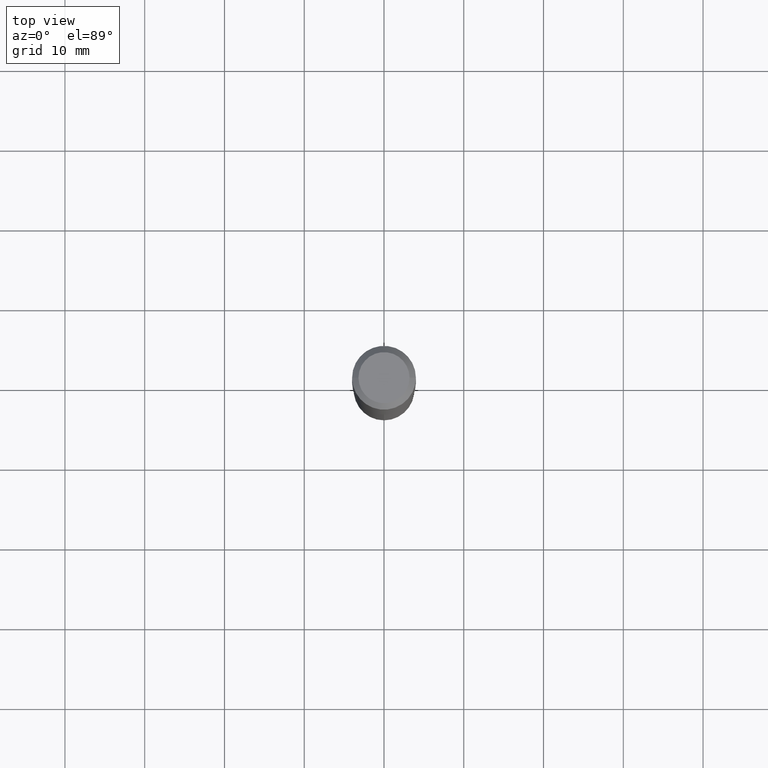
[diagram: clean part render]
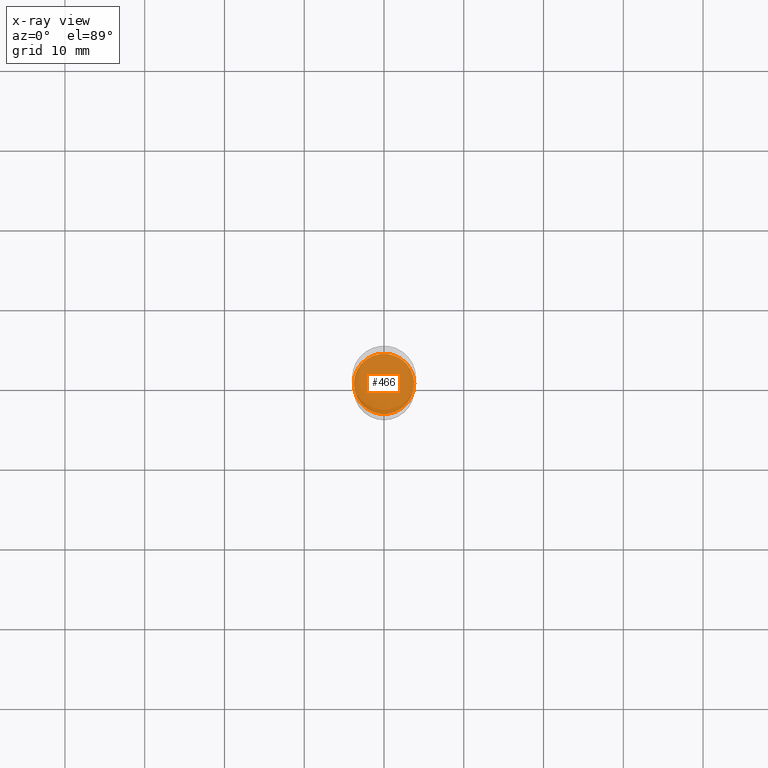
[diagram: x-ray — body ghosted, one internal face saturated and labeled with its STEP entity id]
A machine part, top view, then the same camera in x-ray: the body is ghosted and one INTERNAL B-rep face — a face not visible from any outside direction — is saturated and labeled: STEP entity #466.
In plain terms, the highlighted planar face has unit normal (-0, 0, 1).
Its self-contained STEP definition (entity closure, byte-faithful):
#5 = PLANE ( 'NONE',  #25 ) ;
#23 = DIRECTION ( 'NONE',  ( 1.000000000000000000, -6.982962677686265133E-15, 0.000000000000000000 ) ) ;
#25 = AXIS2_PLACEMENT_3D ( 'NONE', #157, #319, #281 ) ;
#60 = EDGE_CURVE ( 'NONE', #223, #465, #460, .T. ) ;
#78 = ORIENTED_EDGE ( 'NONE', *, *, #231, .F. ) ;
#80 = CARTESIAN_POINT ( 'NONE',  ( 4.390350147744175670E-29, -6.268256447625099205E-15, -1.795300000000000118 ) ) ;
#134 = DIRECTION ( 'NONE',  ( 1.000000000000000000, -6.982962677686265133E-15, 0.000000000000000000 ) ) ;
#147 = ORIENTED_EDGE ( 'NONE', *, *, #60, .F. ) ;
#157 = CARTESIAN_POINT ( 'NONE',  ( 4.390350147744175670E-29, -6.268256447625099205E-15, -1.795300000000000118 ) ) ;
#177 = CARTESIAN_POINT ( 'NONE',  ( 4.390350147744175670E-29, -6.268256447625099205E-15, -1.795300000000000118 ) ) ;
#197 = CARTESIAN_POINT ( 'NONE',  ( 0.1491000000000000103, -7.309416182868121799E-15, -1.795300000000000118 ) ) ;
#223 = VERTEX_POINT ( 'NONE', #472 ) ;
#231 = EDGE_CURVE ( 'NONE', #465, #223, #352, .T. ) ;
#263 = DIRECTION ( 'NONE',  ( -2.445468806185136597E-29, 3.491481338843145583E-15, 1.000000000000000000 ) ) ;
#281 = DIRECTION ( 'NONE',  ( 1.000000000000000000, -6.982962677686265922E-15, 4.876176775795935793E-29 ) ) ;
#319 = DIRECTION ( 'NONE',  ( -2.438088387897960049E-29, 3.491481338843145188E-15, 1.000000000000000000 ) ) ;
#336 = DIRECTION ( 'NONE',  ( -2.445468806185136597E-29, 3.491481338843145583E-15, 1.000000000000000000 ) ) ;
#352 = CIRCLE ( 'NONE', #375, 0.1491000000000000103 ) ;
#362 = EDGE_LOOP ( 'NONE', ( #78, #147 ) ) ;
#375 = AXIS2_PLACEMENT_3D ( 'NONE', #177, #336, #134 ) ;
#385 = FACE_OUTER_BOUND ( 'NONE', #362, .T. ) ;
#430 = AXIS2_PLACEMENT_3D ( 'NONE', #80, #263, #23 ) ;
#460 = CIRCLE ( 'NONE', #430, 0.1491000000000000103 ) ;
#465 = VERTEX_POINT ( 'NONE', #197 ) ;
#466 = ADVANCED_FACE ( 'NONE', ( #385 ), #5, .F. ) ;
#472 = CARTESIAN_POINT ( 'NONE',  ( -0.1491000000000000103, -5.206188001432678554E-15, -1.795300000000000118 ) ) ;